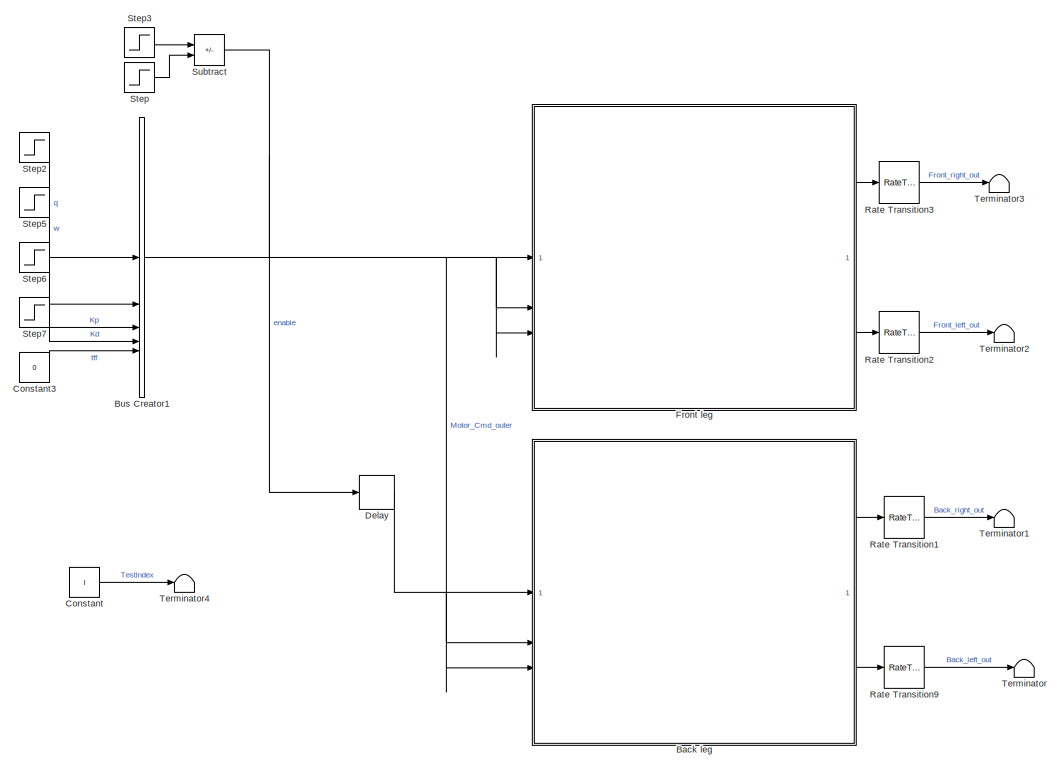
[diagram: root canvas - part 1/2, center side, full height]
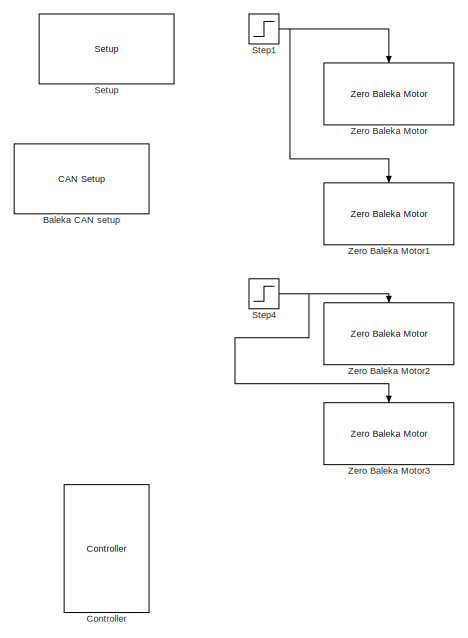
[diagram: root canvas - part 2/2, left side, full height]
MODEL slx_0c93c1179cc9
KIND model
CONFIG AbsTol = auto
CONFIG EnableMultiTasking = off
CONFIG FixedStep = auto
CONFIG MaxStep = auto
CONFIG MinStep = auto
CONFIG RelTol = 1e-3
CONFIG SampleTimeConstraint = Unconstrained
CONFIG SolverName = FixedStepAuto
CONFIG StartTime = 0.0
CONFIG StopTime = StopTime
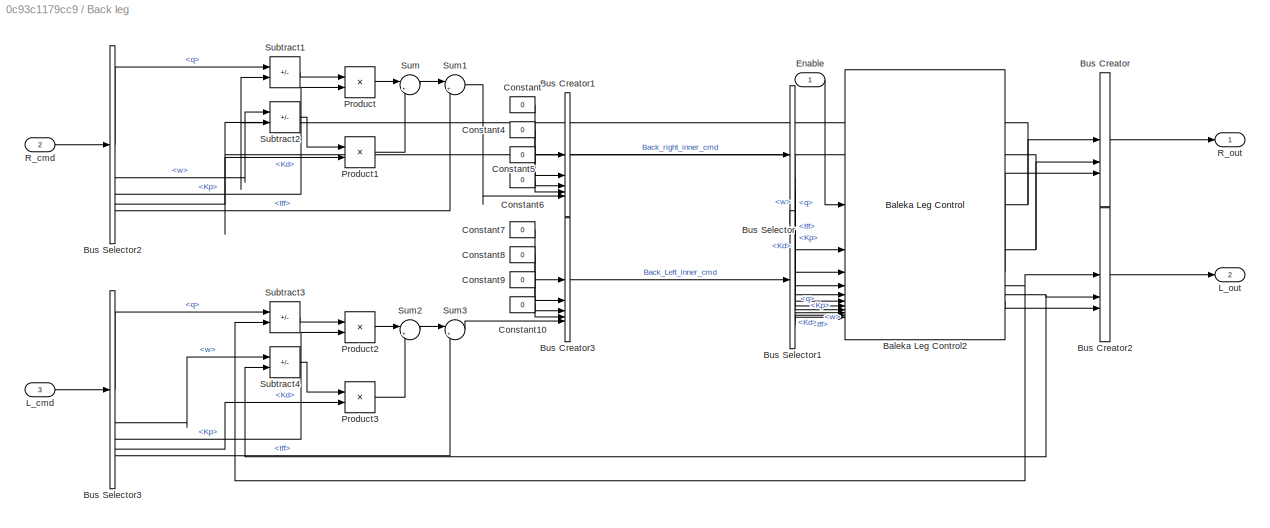
BLOCK [SubSystem] Back leg
BLOCK [Reference] Back leg/Baleka Leg Control2  REF=aru_toolbox/Baleka 2.5/Baleka Leg Control
  SourceBlock = aru_toolbox/Baleka 2.5/Baleka Leg Control
  SourceProductName = ARU Toolbox
  SourceType = Baleka Leg motor commands
BLOCK [BusCreator] Back leg/Bus Creator
  DisplayOption = bar
  InheritFromInputs = off
  Inputs = 3
  NonVirtualBus = on
  OutDataTypeStr = Bus: MotorState
BLOCK [BusCreator] Back leg/Bus Creator1
  DisplayOption = bar
  InheritFromInputs = off
  Inputs = 5
  NonVirtualBus = on
  OutDataTypeStr = Bus: MotorCmd
BLOCK [BusCreator] Back leg/Bus Creator2
  DisplayOption = bar
  InheritFromInputs = off
  Inputs = 3
  NonVirtualBus = on
  OutDataTypeStr = Bus: MotorState
BLOCK [BusCreator] Back leg/Bus Creator3
  DisplayOption = bar
  InheritFromInputs = off
  Inputs = 5
  NonVirtualBus = on
  OutDataTypeStr = Bus: MotorCmd
BLOCK [BusSelector] Back leg/Bus Selector
  OutputSignals = q,w,Kp,Kd,tff
BLOCK [BusSelector] Back leg/Bus Selector1
  OutputSignals = q,w,Kp,Kd,tff
BLOCK [BusSelector] Back leg/Bus Selector2
  OutputSignals = q,w,Kp,Kd,tff
BLOCK [BusSelector] Back leg/Bus Selector3
  OutputSignals = q,w,Kp,Kd,tff
BLOCK [Constant] Back leg/Constant
  Value = 0
BLOCK [Constant] Back leg/Constant10
  NameLocation = top
  Value = 0
BLOCK [Constant] Back leg/Constant4
  Value = 0
BLOCK [Constant] Back leg/Constant5
  Value = 0
BLOCK [Constant] Back leg/Constant6
  NameLocation = top
  Value = 0
BLOCK [Constant] Back leg/Constant7
  Value = 0
BLOCK [Constant] Back leg/Constant8
  Value = 0
BLOCK [Constant] Back leg/Constant9
  Value = 0
BLOCK [Inport] Back leg/Enable
BLOCK [Inport] Back leg/L_cmd
  Port = 3
BLOCK [Outport] Back leg/L_out
  Port = 2
BLOCK [Product] Back leg/Product
BLOCK [Product] Back leg/Product1
BLOCK [Product] Back leg/Product2
BLOCK [Product] Back leg/Product3
BLOCK [Inport] Back leg/R_cmd
  Port = 2
BLOCK [Outport] Back leg/R_out
BLOCK [Sum] Back leg/Subtract1
  IconShape = rectangular
  Inputs = +-
BLOCK [Sum] Back leg/Subtract2
  IconShape = rectangular
  Inputs = +-
BLOCK [Sum] Back leg/Subtract3
  IconShape = rectangular
  Inputs = +-
BLOCK [Sum] Back leg/Subtract4
  IconShape = rectangular
  Inputs = +-
BLOCK [Sum] Back leg/Sum
  Inputs = |++
BLOCK [Sum] Back leg/Sum1
  Inputs = |++
BLOCK [Sum] Back leg/Sum2
  Inputs = |++
BLOCK [Sum] Back leg/Sum3
  Inputs = |++
BLOCK [Reference] Baleka CAN setup  REF=speedgoatlib_IO691/Legacy/CAN Setup 
  SourceBlock = speedgoatlib_IO691/Legacy/CAN Setup
  SourceProductName = IO691
  SourceType = setup_IO691
BLOCK [BusCreator] Bus Creator1
  DisplayOption = bar
  InheritFromInputs = off
  Inputs = 5
  NonVirtualBus = on
  OutDataTypeStr = Bus: MotorCmd
BLOCK [Constant] Constant
  Value = I
BLOCK [Constant] Constant3
  Value = 0
BLOCK [Reference] Controller  REF=aru_toolbox/Controller
  SourceBlock = aru_toolbox/Controller
  SourceProductName = ARU Toolbox
BLOCK [Delay] Delay
  DelayLength = 1
  InputPortMap = u0
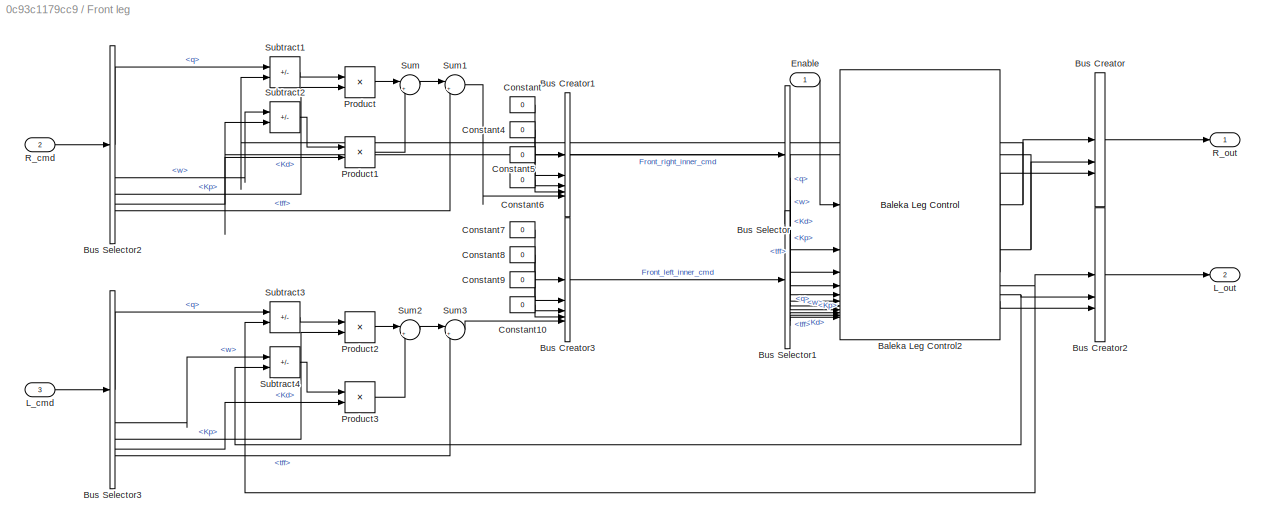
BLOCK [SubSystem] Front leg
BLOCK [Reference] Front leg/Baleka Leg Control2  REF=aru_toolbox/Baleka 2.5/Baleka Leg Control
  SourceBlock = aru_toolbox/Baleka 2.5/Baleka Leg Control
  SourceProductName = ARU Toolbox
  SourceType = Baleka Leg motor commands
BLOCK [BusCreator] Front leg/Bus Creator
  DisplayOption = bar
  InheritFromInputs = off
  Inputs = 3
  NonVirtualBus = on
  OutDataTypeStr = Bus: MotorState
BLOCK [BusCreator] Front leg/Bus Creator1
  DisplayOption = bar
  InheritFromInputs = off
  Inputs = 5
  NonVirtualBus = on
  OutDataTypeStr = Bus: MotorCmd
BLOCK [BusCreator] Front leg/Bus Creator2
  DisplayOption = bar
  InheritFromInputs = off
  Inputs = 3
  NonVirtualBus = on
  OutDataTypeStr = Bus: MotorState
BLOCK [BusCreator] Front leg/Bus Creator3
  DisplayOption = bar
  InheritFromInputs = off
  Inputs = 5
  NonVirtualBus = on
  OutDataTypeStr = Bus: MotorCmd
BLOCK [BusSelector] Front leg/Bus Selector
  OutputSignals = q,w,Kp,Kd,tff
BLOCK [BusSelector] Front leg/Bus Selector1
  OutputSignals = q,w,Kp,Kd,tff
BLOCK [BusSelector] Front leg/Bus Selector2
  OutputSignals = q,w,Kp,Kd,tff
BLOCK [BusSelector] Front leg/Bus Selector3
  OutputSignals = q,w,Kp,Kd,tff
BLOCK [Constant] Front leg/Constant
  Value = 0
BLOCK [Constant] Front leg/Constant10
  NameLocation = top
  Value = 0
BLOCK [Constant] Front leg/Constant4
  Value = 0
BLOCK [Constant] Front leg/Constant5
  Value = 0
BLOCK [Constant] Front leg/Constant6
  NameLocation = top
  Value = 0
BLOCK [Constant] Front leg/Constant7
  Value = 0
BLOCK [Constant] Front leg/Constant8
  Value = 0
BLOCK [Constant] Front leg/Constant9
  Value = 0
BLOCK [Inport] Front leg/Enable
BLOCK [Inport] Front leg/L_cmd
  Port = 3
BLOCK [Outport] Front leg/L_out
  Port = 2
BLOCK [Product] Front leg/Product
BLOCK [Product] Front leg/Product1
BLOCK [Product] Front leg/Product2
BLOCK [Product] Front leg/Product3
BLOCK [Inport] Front leg/R_cmd
  Port = 2
BLOCK [Outport] Front leg/R_out
BLOCK [Sum] Front leg/Subtract1
  IconShape = rectangular
  Inputs = +-
BLOCK [Sum] Front leg/Subtract2
  IconShape = rectangular
  Inputs = +-
BLOCK [Sum] Front leg/Subtract3
  IconShape = rectangular
  Inputs = +-
BLOCK [Sum] Front leg/Subtract4
  IconShape = rectangular
  Inputs = +-
BLOCK [Sum] Front leg/Sum
  Inputs = |++
BLOCK [Sum] Front leg/Sum1
  Inputs = |++
BLOCK [Sum] Front leg/Sum2
  Inputs = |++
BLOCK [Sum] Front leg/Sum3
  Inputs = |++
BLOCK [RateTransition] Rate Transition1
  OutPortSampleTime = 1/1000
BLOCK [RateTransition] Rate Transition2
  OutPortSampleTime = 1/1000
BLOCK [RateTransition] Rate Transition3
  OutPortSampleTime = 1/1000
BLOCK [RateTransition] Rate Transition9
  OutPortSampleTime = 1/1000
BLOCK [Reference] Setup   REF=speedgoatlib_IO291/Setup 
  SourceBlock = speedgoatlib_IO291/Setup
  SourceProductName = IO291
  SourceType = setup_IO291
BLOCK [Step] Step
  SampleTime = 0
  Time = StopTime-4
BLOCK [Step] Step1
  SampleTime = 0
  Time = 2
BLOCK [Step] Step2
  After = qStepSize
  Time = 5
BLOCK [Step] Step3
  SampleTime = 0
BLOCK [Step] Step4
  SampleTime = 0
  Time = 2
BLOCK [Step] Step5
  After = wStepSize+wStart
  Before = wStart
  SampleTime = 0
  Time = 5
BLOCK [Step] Step6
  After = Kp
  Time = 5
BLOCK [Step] Step7
  After = Kd
BLOCK [Sum] Subtract
  IconShape = rectangular
  Inputs = +-
BLOCK [Terminator] Terminator
BLOCK [Terminator] Terminator1
BLOCK [Terminator] Terminator2
BLOCK [Terminator] Terminator3
BLOCK [Terminator] Terminator4
BLOCK [Reference] Zero Baleka Motor  REF=aru_toolbox/Baleka 2.5/Zero Baleka Motor
  SourceBlock = aru_toolbox/Baleka 2.5/Zero Baleka Motor
  SourceProductName = ARU Toolbox
  SourceType = Zero AK10-9
BLOCK [Reference] Zero Baleka Motor1  REF=aru_toolbox/Baleka 2.5/Zero Baleka Motor
  SourceBlock = aru_toolbox/Baleka 2.5/Zero Baleka Motor
  SourceProductName = ARU Toolbox
  SourceType = Zero AK10-9
BLOCK [Reference] Zero Baleka Motor2  REF=aru_toolbox/Baleka 2.5/Zero Baleka Motor
  SourceBlock = aru_toolbox/Baleka 2.5/Zero Baleka Motor
  SourceProductName = ARU Toolbox
  SourceType = Zero AK10-9
BLOCK [Reference] Zero Baleka Motor3  REF=aru_toolbox/Baleka 2.5/Zero Baleka Motor
  SourceBlock = aru_toolbox/Baleka 2.5/Zero Baleka Motor
  SourceProductName = ARU Toolbox
  SourceType = Zero AK10-9
NET Back leg/Baleka Leg Control2:1 -> Back leg/Bus Creator:1, Back leg/Subtract1:2
NET Back leg/Baleka Leg Control2:2 -> Back leg/Bus Creator:2, Back leg/Subtract2:2
LINE Back leg/Baleka Leg Control2:3 -> Back leg/Bus Creator:3
NET Back leg/Baleka Leg Control2:4 -> Back leg/Bus Creator2:1, Back leg/Subtract3:2
NET Back leg/Baleka Leg Control2:5 -> Back leg/Bus Creator2:2, Back leg/Subtract4:2
LINE Back leg/Baleka Leg Control2:6 -> Back leg/Bus Creator2:3
LINE Back leg/Bus Creator1:1 -> Back leg/Bus Selector:1
LINE Back leg/Bus Creator2:1 -> Back leg/L_out:1
LINE Back leg/Bus Creator3:1 -> Back leg/Bus Selector1:1
LINE Back leg/Bus Creator:1 -> Back leg/R_out:1
LINE Back leg/Bus Selector1:1 -> Back leg/Baleka Leg Control2:7
LINE Back leg/Bus Selector1:2 -> Back leg/Baleka Leg Control2:8
LINE Back leg/Bus Selector1:3 -> Back leg/Baleka Leg Control2:9
LINE Back leg/Bus Selector1:4 -> Back leg/Baleka Leg Control2:10
LINE Back leg/Bus Selector1:5 -> Back leg/Baleka Leg Control2:11
LINE Back leg/Bus Selector2:1 -> Back leg/Subtract1:1
LINE Back leg/Bus Selector2:2 -> Back leg/Subtract2:1
LINE Back leg/Bus Selector2:3 -> Back leg/Product:2
LINE Back leg/Bus Selector2:4 -> Back leg/Product1:2
LINE Back leg/Bus Selector2:5 -> Back leg/Sum1:2
LINE Back leg/Bus Selector3:1 -> Back leg/Subtract3:1
LINE Back leg/Bus Selector3:2 -> Back leg/Subtract4:1
LINE Back leg/Bus Selector3:3 -> Back leg/Product2:2
LINE Back leg/Bus Selector3:4 -> Back leg/Product3:2
LINE Back leg/Bus Selector3:5 -> Back leg/Sum3:2
LINE Back leg/Bus Selector:1 -> Back leg/Baleka Leg Control2:2
LINE Back leg/Bus Selector:2 -> Back leg/Baleka Leg Control2:3
LINE Back leg/Bus Selector:3 -> Back leg/Baleka Leg Control2:4
LINE Back leg/Bus Selector:4 -> Back leg/Baleka Leg Control2:5
LINE Back leg/Bus Selector:5 -> Back leg/Baleka Leg Control2:6
LINE Back leg/Constant10:1 -> Back leg/Bus Creator3:4
LINE Back leg/Constant4:1 -> Back leg/Bus Creator1:2
LINE Back leg/Constant5:1 -> Back leg/Bus Creator1:3
LINE Back leg/Constant6:1 -> Back leg/Bus Creator1:4
LINE Back leg/Constant7:1 -> Back leg/Bus Creator3:1
LINE Back leg/Constant8:1 -> Back leg/Bus Creator3:2
LINE Back leg/Constant9:1 -> Back leg/Bus Creator3:3
LINE Back leg/Constant:1 -> Back leg/Bus Creator1:1
LINE Back leg/Enable:1 -> Back leg/Baleka Leg Control2:1
LINE Back leg/L_cmd:1 -> Back leg/Bus Selector3:1
LINE Back leg/Product1:1 -> Back leg/Sum:2
LINE Back leg/Product2:1 -> Back leg/Sum2:1
LINE Back leg/Product3:1 -> Back leg/Sum2:2
LINE Back leg/Product:1 -> Back leg/Sum:1
LINE Back leg/R_cmd:1 -> Back leg/Bus Selector2:1
LINE Back leg/Subtract1:1 -> Back leg/Product:1
LINE Back leg/Subtract2:1 -> Back leg/Product1:1
LINE Back leg/Subtract3:1 -> Back leg/Product2:1
LINE Back leg/Subtract4:1 -> Back leg/Product3:1
LINE Back leg/Sum1:1 -> Back leg/Bus Creator1:5
LINE Back leg/Sum2:1 -> Back leg/Sum3:1
LINE Back leg/Sum3:1 -> Back leg/Bus Creator3:5
LINE Back leg/Sum:1 -> Back leg/Sum1:1
LINE Back leg:1 -> Rate Transition1:1
LINE Back leg:2 -> Rate Transition9:1
NET Bus Creator1:1 -> Back leg:2, Back leg:3, Front leg:2, Front leg:3
LINE Constant3:1 -> Bus Creator1:5
LINE Constant:1 -> Terminator4:1
LINE Delay:1 -> Back leg:1
NET Front leg/Baleka Leg Control2:1 -> Front leg/Bus Creator:1, Front leg/Subtract1:2
NET Front leg/Baleka Leg Control2:2 -> Front leg/Bus Creator:2, Front leg/Subtract2:2
LINE Front leg/Baleka Leg Control2:3 -> Front leg/Bus Creator:3
NET Front leg/Baleka Leg Control2:4 -> Front leg/Bus Creator2:1, Front leg/Subtract3:2
NET Front leg/Baleka Leg Control2:5 -> Front leg/Bus Creator2:2, Front leg/Subtract4:2
LINE Front leg/Baleka Leg Control2:6 -> Front leg/Bus Creator2:3
LINE Front leg/Bus Creator1:1 -> Front leg/Bus Selector:1
LINE Front leg/Bus Creator2:1 -> Front leg/L_out:1
LINE Front leg/Bus Creator3:1 -> Front leg/Bus Selector1:1
LINE Front leg/Bus Creator:1 -> Front leg/R_out:1
LINE Front leg/Bus Selector1:1 -> Front leg/Baleka Leg Control2:7
LINE Front leg/Bus Selector1:2 -> Front leg/Baleka Leg Control2:8
LINE Front leg/Bus Selector1:3 -> Front leg/Baleka Leg Control2:9
LINE Front leg/Bus Selector1:4 -> Front leg/Baleka Leg Control2:10
LINE Front leg/Bus Selector1:5 -> Front leg/Baleka Leg Control2:11
LINE Front leg/Bus Selector2:1 -> Front leg/Subtract1:1
LINE Front leg/Bus Selector2:2 -> Front leg/Subtract2:1
LINE Front leg/Bus Selector2:3 -> Front leg/Product:2
LINE Front leg/Bus Selector2:4 -> Front leg/Product1:2
LINE Front leg/Bus Selector2:5 -> Front leg/Sum1:2
LINE Front leg/Bus Selector3:1 -> Front leg/Subtract3:1
LINE Front leg/Bus Selector3:2 -> Front leg/Subtract4:1
LINE Front leg/Bus Selector3:3 -> Front leg/Product2:2
LINE Front leg/Bus Selector3:4 -> Front leg/Product3:2
LINE Front leg/Bus Selector3:5 -> Front leg/Sum3:2
LINE Front leg/Bus Selector:1 -> Front leg/Baleka Leg Control2:2
LINE Front leg/Bus Selector:2 -> Front leg/Baleka Leg Control2:3
LINE Front leg/Bus Selector:3 -> Front leg/Baleka Leg Control2:4
LINE Front leg/Bus Selector:4 -> Front leg/Baleka Leg Control2:5
LINE Front leg/Bus Selector:5 -> Front leg/Baleka Leg Control2:6
LINE Front leg/Constant10:1 -> Front leg/Bus Creator3:4
LINE Front leg/Constant4:1 -> Front leg/Bus Creator1:2
LINE Front leg/Constant5:1 -> Front leg/Bus Creator1:3
LINE Front leg/Constant6:1 -> Front leg/Bus Creator1:4
LINE Front leg/Constant7:1 -> Front leg/Bus Creator3:1
LINE Front leg/Constant8:1 -> Front leg/Bus Creator3:2
LINE Front leg/Constant9:1 -> Front leg/Bus Creator3:3
LINE Front leg/Constant:1 -> Front leg/Bus Creator1:1
LINE Front leg/Enable:1 -> Front leg/Baleka Leg Control2:1
LINE Front leg/L_cmd:1 -> Front leg/Bus Selector3:1
LINE Front leg/Product1:1 -> Front leg/Sum:2
LINE Front leg/Product2:1 -> Front leg/Sum2:1
LINE Front leg/Product3:1 -> Front leg/Sum2:2
LINE Front leg/Product:1 -> Front leg/Sum:1
LINE Front leg/R_cmd:1 -> Front leg/Bus Selector2:1
LINE Front leg/Subtract1:1 -> Front leg/Product:1
LINE Front leg/Subtract2:1 -> Front leg/Product1:1
LINE Front leg/Subtract3:1 -> Front leg/Product2:1
LINE Front leg/Subtract4:1 -> Front leg/Product3:1
LINE Front leg/Sum1:1 -> Front leg/Bus Creator1:5
LINE Front leg/Sum2:1 -> Front leg/Sum3:1
LINE Front leg/Sum3:1 -> Front leg/Bus Creator3:5
LINE Front leg/Sum:1 -> Front leg/Sum1:1
LINE Front leg:1 -> Rate Transition3:1
LINE Front leg:2 -> Rate Transition2:1
LINE Rate Transition1:1 -> Terminator1:1
LINE Rate Transition2:1 -> Terminator2:1
LINE Rate Transition3:1 -> Terminator3:1
LINE Rate Transition9:1 -> Terminator:1
NET Step1:1 -> Zero Baleka Motor1:trigger, Zero Baleka Motor:trigger
LINE Step2:1 -> Bus Creator1:1
LINE Step3:1 -> Subtract:1
NET Step4:1 -> Zero Baleka Motor2:trigger, Zero Baleka Motor3:trigger
LINE Step5:1 -> Bus Creator1:2
LINE Step6:1 -> Bus Creator1:3
LINE Step7:1 -> Bus Creator1:4
LINE Step:1 -> Subtract:2
NET Subtract:1 -> Delay:1, Front leg:1
note: NET lines group one-source signal fan-out (src -> all destinations, sorted); 1:1 wires keep LINE
